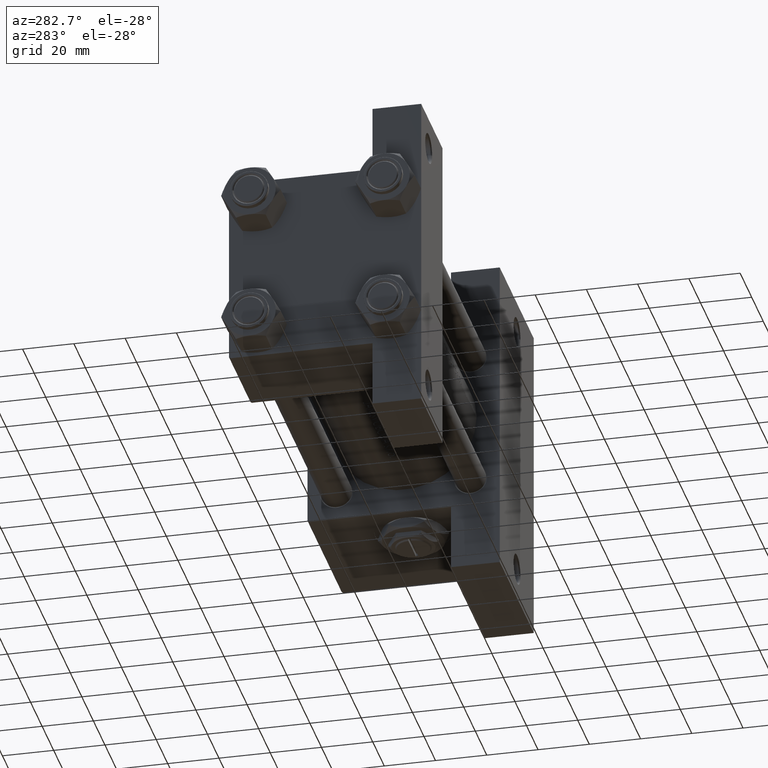
[diagram: clean part render]
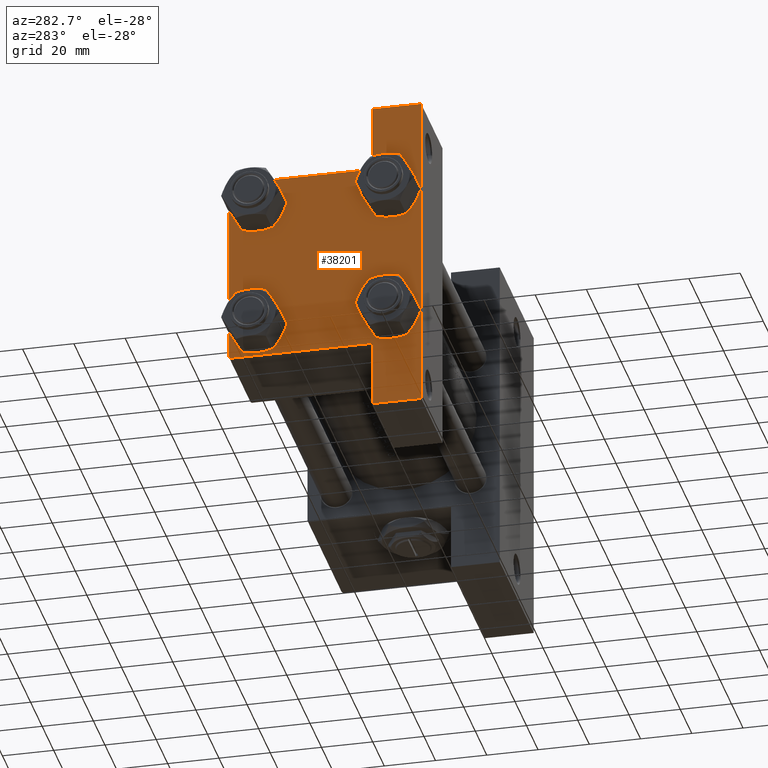
[diagram: same view with one face highlighted and labeled with its STEP entity id]
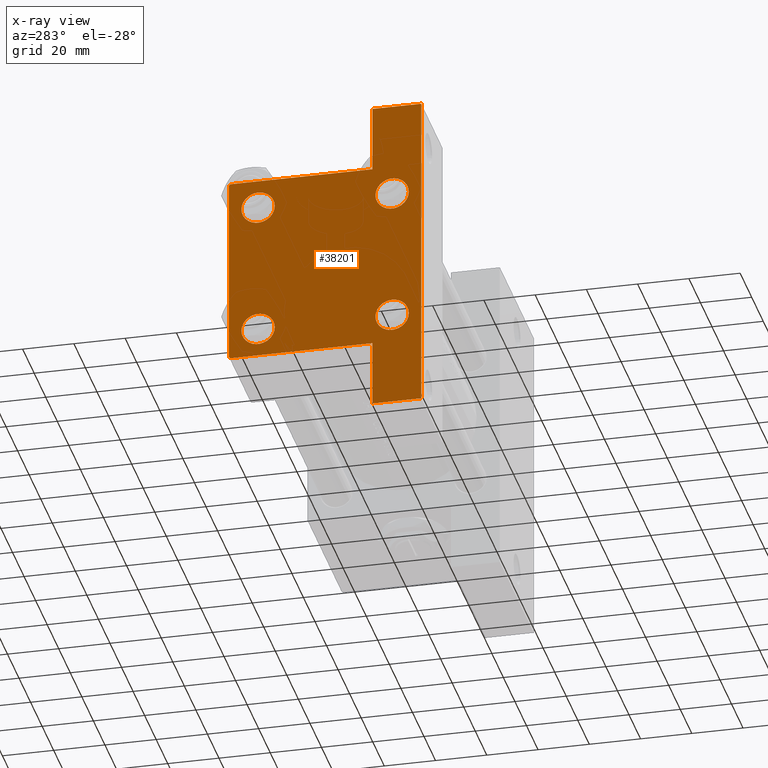
[diagram: x-ray of the same camera — body ghosted, the highlighted face saturated]
A machine part, auxiliary view. The second image highlights one B-rep face of the part: STEP entity #38201.
The next image is the same camera in x-ray: the body ghosted, the highlighted face saturated — about 0% of this face is hidden behind the body in this view.
In plain terms, the highlighted planar face has unit normal (-1, 0, -0).
Its self-contained STEP definition (entity closure, byte-faithful):
#8 = CARTESIAN_POINT ( 'NONE',  ( 0.000000000000000000, 37.49999999999999289, -18.49999999999999645 ) ) ;
#87 = CARTESIAN_POINT ( 'NONE',  ( 3.977209754999744250E-16, -63.49999999999998579, -18.50000000000000355 ) ) ;
#236 = VERTEX_POINT ( 'NONE', #23787 ) ;
#1041 = VECTOR ( 'NONE', #38420, 1000.000000000000000 ) ;
#1137 = DIRECTION ( 'NONE',  ( 0.000000000000000000, 0.000000000000000000, 1.000000000000000000 ) ) ;
#1184 = LINE ( 'NONE', #8662, #30453 ) ;
#1205 = CARTESIAN_POINT ( 'NONE',  ( 0.000000000000000000, 37.49999999999999289, 37.50000000000000000 ) ) ;
#1896 = VECTOR ( 'NONE', #3488, 1000.000000000000114 ) ;
#2680 = ORIENTED_EDGE ( 'NONE', *, *, #35478, .T. ) ;
#2807 = DIRECTION ( 'NONE',  ( 0.000000000000000000, -1.734723475976806848E-16, -1.000000000000000000 ) ) ;
#3044 = DIRECTION ( 'NONE',  ( 0.000000000000000000, -1.000000000000000000, -9.251858538542971581E-17 ) ) ;
#3206 = ORIENTED_EDGE ( 'NONE', *, *, #26325, .T. ) ;
#3488 = DIRECTION ( 'NONE',  ( 0.000000000000000000, 0.7071067811865474617, -0.7071067811865474617 ) ) ;
#3643 = CARTESIAN_POINT ( 'NONE',  ( 0.000000000000000000, 36.99999999999999289, 37.50000000000000000 ) ) ;
#3760 = VERTEX_POINT ( 'NONE', #17884 ) ;
#4013 = CARTESIAN_POINT ( 'NONE',  ( 0.000000000000000000, 26.14999999999999858, -26.15000000000000213 ) ) ;
#4054 = VERTEX_POINT ( 'NONE', #29701 ) ;
#4082 = CIRCLE ( 'NONE', #46206, 6.500000000000023093 ) ;
#4277 = CARTESIAN_POINT ( 'NONE',  ( 0.000000000000000000, 26.14999999999999858, -32.65000000000001990 ) ) ;
#4394 = CIRCLE ( 'NONE', #6791, 6.500000000000023093 ) ;
#4465 = ORIENTED_EDGE ( 'NONE', *, *, #29495, .F. ) ;
#4817 = DIRECTION ( 'NONE',  ( 0.000000000000000000, -1.000000000000000000, -9.251858538542972814E-17 ) ) ;
#4972 = CARTESIAN_POINT ( 'NONE',  ( 0.000000000000000000, 26.14999999999999858, 26.15000000000000213 ) ) ;
#5063 = VECTOR ( 'NONE', #39295, 1000.000000000000000 ) ;
#5613 = AXIS2_PLACEMENT_3D ( 'NONE', #21561, #40497, #13863 ) ;
#5681 = LINE ( 'NONE', #1205, #5063 ) ;
#6121 = VERTEX_POINT ( 'NONE', #27215 ) ;
#6341 = EDGE_CURVE ( 'NONE', #18123, #13469, #37391, .T. ) ;
#6677 = ORIENTED_EDGE ( 'NONE', *, *, #20675, .F. ) ;
#6791 = AXIS2_PLACEMENT_3D ( 'NONE', #30886, #42336, #31621 ) ;
#7147 = DIRECTION ( 'NONE',  ( 0.000000000000000000, 0.000000000000000000, 1.000000000000000000 ) ) ;
#7280 = CARTESIAN_POINT ( 'NONE',  ( -0.000000000000000000, -37.25000000000000000, 37.25000000000000000 ) ) ;
#7319 = AXIS2_PLACEMENT_3D ( 'NONE', #4013, #41362, #37126 ) ;
#7700 = CARTESIAN_POINT ( 'NONE',  ( 0.000000000000000000, 0.000000000000000000, 0.000000000000000000 ) ) ;
#7949 = FACE_OUTER_BOUND ( 'NONE', #42796, .T. ) ;
#8202 = EDGE_CURVE ( 'NONE', #31895, #14694, #9551, .T. ) ;
#8281 = DIRECTION ( 'NONE',  ( 1.000000000000000000, -0.000000000000000000, 0.000000000000000000 ) ) ;
#8528 = AXIS2_PLACEMENT_3D ( 'NONE', #7700, #26610, #46048 ) ;
#8555 = LINE ( 'NONE', #23736, #15410 ) ;
#8628 = VECTOR ( 'NONE', #26185, 1000.000000000000114 ) ;
#8662 = CARTESIAN_POINT ( 'NONE',  ( 3.977209754999747208E-16, -63.49999999999998579, 26.72167621838007889 ) ) ;
#8759 = EDGE_LOOP ( 'NONE', ( #16944, #27794 ) ) ;
#9551 = LINE ( 'NONE', #20736, #12682 ) ;
#10136 = VECTOR ( 'NONE', #2807, 1000.000000000000000 ) ;
#10784 = ORIENTED_EDGE ( 'NONE', *, *, #19062, .T. ) ;
#10796 = CARTESIAN_POINT ( 'NONE',  ( 0.000000000000000000, -37.50000000000000711, 36.99999999999999289 ) ) ;
#10902 = DIRECTION ( 'NONE',  ( 1.000000000000000000, -0.000000000000000000, 0.000000000000000000 ) ) ;
#12402 = EDGE_LOOP ( 'NONE', ( #21037, #39089 ) ) ;
#12682 = VECTOR ( 'NONE', #23744, 1000.000000000000000 ) ;
#12727 = CARTESIAN_POINT ( 'NONE',  ( 0.000000000000000000, 26.14999999999999858, 19.64999999999998437 ) ) ;
#13340 = VERTEX_POINT ( 'NONE', #46397 ) ;
#13469 = VERTEX_POINT ( 'NONE', #33162 ) ;
#13662 = VERTEX_POINT ( 'NONE', #40293 ) ;
#13863 = DIRECTION ( 'NONE',  ( 0.000000000000000000, 0.000000000000000000, 1.000000000000000000 ) ) ;
#14000 = LINE ( 'NONE', #44136, #38560 ) ;
#14694 = VERTEX_POINT ( 'NONE', #8 ) ;
#14723 = AXIS2_PLACEMENT_3D ( 'NONE', #18421, #36331, #1137 ) ;
#15410 = VECTOR ( 'NONE', #4817, 1000.000000000000000 ) ;
#15993 = DIRECTION ( 'NONE',  ( 0.000000000000000000, 0.000000000000000000, 1.000000000000000000 ) ) ;
#16333 = CIRCLE ( 'NONE', #46569, 6.500000000000015987 ) ;
#16913 = DIRECTION ( 'NONE',  ( 1.000000000000000000, -0.000000000000000000, 0.000000000000000000 ) ) ;
#16944 = ORIENTED_EDGE ( 'NONE', *, *, #48644, .T. ) ;
#17250 = CARTESIAN_POINT ( 'NONE',  ( 0.000000000000000000, 37.24999999999999289, 37.24999999999999289 ) ) ;
#17274 = VERTEX_POINT ( 'NONE', #36118 ) ;
#17884 = CARTESIAN_POINT ( 'NONE',  ( 0.000000000000000000, 26.14999999999999858, 32.65000000000002700 ) ) ;
#18123 = VERTEX_POINT ( 'NONE', #10796 ) ;
#18421 = CARTESIAN_POINT ( 'NONE',  ( 0.000000000000000000, -26.14999999999999147, 26.15000000000000924 ) ) ;
#18616 = CARTESIAN_POINT ( 'NONE',  ( 0.000000000000000000, -26.14999999999999147, 26.15000000000000924 ) ) ;
#19009 = CARTESIAN_POINT ( 'NONE',  ( 0.000000000000000000, -26.14999999999999147, -32.65000000000002700 ) ) ;
#19062 = EDGE_CURVE ( 'NONE', #35632, #17274, #46309, .T. ) ;
#19152 = FACE_BOUND ( 'NONE', #12402, .T. ) ;
#19373 = DIRECTION ( 'NONE',  ( 0.000000000000000000, -1.734723475976806848E-16, -1.000000000000000000 ) ) ;
#19536 = VERTEX_POINT ( 'NONE', #42573 ) ;
#19717 = CARTESIAN_POINT ( 'NONE',  ( 0.000000000000000000, 26.14999999999999858, -26.15000000000000213 ) ) ;
#19834 = LINE ( 'NONE', #28536, #21092 ) ;
#20675 = EDGE_CURVE ( 'NONE', #40959, #4054, #1184, .T. ) ;
#20736 = CARTESIAN_POINT ( 'NONE',  ( 1.595073532467135757E-14, 63.50000000000001421, -18.50000000000000355 ) ) ;
#20936 = EDGE_CURVE ( 'NONE', #28607, #6121, #36012, .T. ) ;
#21037 = ORIENTED_EDGE ( 'NONE', *, *, #47161, .T. ) ;
#21092 = VECTOR ( 'NONE', #46727, 1000.000000000000000 ) ;
#21330 = EDGE_CURVE ( 'NONE', #13662, #40959, #37926, .T. ) ;
#21561 = CARTESIAN_POINT ( 'NONE',  ( 0.000000000000000000, -26.14999999999999147, -26.15000000000000924 ) ) ;
#21980 = EDGE_LOOP ( 'NONE', ( #45405, #10784 ) ) ;
#22151 = ORIENTED_EDGE ( 'NONE', *, *, #23810, .T. ) ;
#22640 = PLANE ( 'NONE',  #8528 ) ;
#23736 = CARTESIAN_POINT ( 'NONE',  ( 0.000000000000000000, 37.49999999999999289, -37.50000000000000000 ) ) ;
#23744 = DIRECTION ( 'NONE',  ( -2.877097866686192789E-16, -1.000000000000000000, 0.000000000000000000 ) ) ;
#23787 = CARTESIAN_POINT ( 'NONE',  ( 1.595073532467135441E-14, 63.50000000000000000, -37.50000000000002132 ) ) ;
#23810 = EDGE_CURVE ( 'NONE', #3760, #27089, #42380, .T. ) ;
#24446 = ORIENTED_EDGE ( 'NONE', *, *, #26070, .T. ) ;
#25832 = DIRECTION ( 'NONE',  ( 0.000000000000000000, 0.000000000000000000, 1.000000000000000000 ) ) ;
#26070 = EDGE_CURVE ( 'NONE', #236, #4054, #8555, .T. ) ;
#26148 = EDGE_CURVE ( 'NONE', #29074, #13340, #47634, .T. ) ;
#26185 = DIRECTION ( 'NONE',  ( -0.000000000000000000, 0.7071067811865474617, 0.7071067811865474617 ) ) ;
#26325 = EDGE_CURVE ( 'NONE', #13340, #14694, #5681, .T. ) ;
#26610 = DIRECTION ( 'NONE',  ( -1.000000000000000000, 0.000000000000000000, -0.000000000000000000 ) ) ;
#27089 = VERTEX_POINT ( 'NONE', #12727 ) ;
#27185 = ORIENTED_EDGE ( 'NONE', *, *, #26148, .T. ) ;
#27215 = CARTESIAN_POINT ( 'NONE',  ( 0.000000000000000000, -26.14999999999999147, -19.64999999999999503 ) ) ;
#27410 = EDGE_CURVE ( 'NONE', #17274, #35632, #16333, .T. ) ;
#27735 = EDGE_CURVE ( 'NONE', #27089, #3760, #4394, .T. ) ;
#27794 = ORIENTED_EDGE ( 'NONE', *, *, #29894, .T. ) ;
#28536 = CARTESIAN_POINT ( 'NONE',  ( 0.000000000000000000, -37.50000000000000711, 37.49999999999999289 ) ) ;
#28607 = VERTEX_POINT ( 'NONE', #19009 ) ;
#29074 = VERTEX_POINT ( 'NONE', #3643 ) ;
#29495 = EDGE_CURVE ( 'NONE', #29074, #13469, #14000, .T. ) ;
#29701 = CARTESIAN_POINT ( 'NONE',  ( 3.977209754999747208E-16, -63.50000000000000000, -37.49999999999999289 ) ) ;
#29894 = EDGE_CURVE ( 'NONE', #19536, #37103, #36171, .T. ) ;
#30453 = VECTOR ( 'NONE', #19373, 1000.000000000000000 ) ;
#30886 = CARTESIAN_POINT ( 'NONE',  ( 0.000000000000000000, 26.14999999999999858, 26.15000000000000213 ) ) ;
#31043 = EDGE_CURVE ( 'NONE', #18123, #13662, #19834, .T. ) ;
#31621 = DIRECTION ( 'NONE',  ( 0.000000000000000000, 0.000000000000000000, 1.000000000000000000 ) ) ;
#31895 = VERTEX_POINT ( 'NONE', #42333 ) ;
#32124 = CARTESIAN_POINT ( 'NONE',  ( 0.000000000000000000, -26.14999999999999147, 32.65000000000003411 ) ) ;
#32226 = EDGE_LOOP ( 'NONE', ( #22151, #47889 ) ) ;
#33162 = CARTESIAN_POINT ( 'NONE',  ( 0.000000000000000000, -37.00000000000000711, 37.49999999999999289 ) ) ;
#33668 = CARTESIAN_POINT ( 'NONE',  ( 1.595073532467135441E-14, 63.50000000000001421, 26.72167621838005047 ) ) ;
#34331 = FACE_BOUND ( 'NONE', #21980, .T. ) ;
#35162 = ORIENTED_EDGE ( 'NONE', *, *, #8202, .F. ) ;
#35193 = AXIS2_PLACEMENT_3D ( 'NONE', #4972, #16913, #47293 ) ;
#35478 = EDGE_CURVE ( 'NONE', #31895, #236, #36663, .T. ) ;
#35632 = VERTEX_POINT ( 'NONE', #4277 ) ;
#36012 = CIRCLE ( 'NONE', #42383, 6.500000000000015987 ) ;
#36118 = CARTESIAN_POINT ( 'NONE',  ( 0.000000000000000000, 26.14999999999999858, -19.64999999999998792 ) ) ;
#36171 = CIRCLE ( 'NONE', #14723, 6.500000000000023093 ) ;
#36331 = DIRECTION ( 'NONE',  ( 1.000000000000000000, -0.000000000000000000, 0.000000000000000000 ) ) ;
#36663 = LINE ( 'NONE', #33668, #10136 ) ;
#37075 = ORIENTED_EDGE ( 'NONE', *, *, #31043, .F. ) ;
#37103 = VERTEX_POINT ( 'NONE', #32124 ) ;
#37126 = DIRECTION ( 'NONE',  ( 0.000000000000000000, 0.000000000000000000, 1.000000000000000000 ) ) ;
#37391 = LINE ( 'NONE', #7280, #8628 ) ;
#37926 = LINE ( 'NONE', #87, #1041 ) ;
#38201 = ADVANCED_FACE ( 'NONE', ( #45557, #19152, #34331, #49040, #7949 ), #22640, .T. ) ;
#38258 = ORIENTED_EDGE ( 'NONE', *, *, #21330, .F. ) ;
#38420 = DIRECTION ( 'NONE',  ( 4.278042683914906889E-17, -1.000000000000000000, 0.000000000000000000 ) ) ;
#38560 = VECTOR ( 'NONE', #3044, 1000.000000000000000 ) ;
#39089 = ORIENTED_EDGE ( 'NONE', *, *, #20936, .T. ) ;
#39295 = DIRECTION ( 'NONE',  ( 0.000000000000000000, 0.000000000000000000, -1.000000000000000000 ) ) ;
#40293 = CARTESIAN_POINT ( 'NONE',  ( -7.145701223179004046E-16, -37.50000000000000711, -18.50000000000000355 ) ) ;
#40497 = DIRECTION ( 'NONE',  ( 1.000000000000000000, -0.000000000000000000, 0.000000000000000000 ) ) ;
#40959 = VERTEX_POINT ( 'NONE', #45968 ) ;
#41240 = DIRECTION ( 'NONE',  ( 1.000000000000000000, -0.000000000000000000, 0.000000000000000000 ) ) ;
#41362 = DIRECTION ( 'NONE',  ( 1.000000000000000000, -0.000000000000000000, 0.000000000000000000 ) ) ;
#41730 = CARTESIAN_POINT ( 'NONE',  ( 0.000000000000000000, -26.14999999999999147, -26.15000000000000924 ) ) ;
#42333 = CARTESIAN_POINT ( 'NONE',  ( 1.595073532467135441E-14, 63.50000000000000000, -18.50000000000000355 ) ) ;
#42336 = DIRECTION ( 'NONE',  ( 1.000000000000000000, -0.000000000000000000, 0.000000000000000000 ) ) ;
#42380 = CIRCLE ( 'NONE', #35193, 6.500000000000023093 ) ;
#42383 = AXIS2_PLACEMENT_3D ( 'NONE', #41730, #41240, #7147 ) ;
#42573 = CARTESIAN_POINT ( 'NONE',  ( 0.000000000000000000, -26.14999999999999147, 19.64999999999999147 ) ) ;
#42796 = EDGE_LOOP ( 'NONE', ( #37075, #43683, #4465, #27185, #3206, #35162, #2680, #24446, #6677, #38258 ) ) ;
#43683 = ORIENTED_EDGE ( 'NONE', *, *, #6341, .T. ) ;
#44136 = CARTESIAN_POINT ( 'NONE',  ( 0.000000000000000000, 37.49999999999999289, 37.50000000000000000 ) ) ;
#45405 = ORIENTED_EDGE ( 'NONE', *, *, #27410, .T. ) ;
#45557 = FACE_BOUND ( 'NONE', #8759, .T. ) ;
#45968 = CARTESIAN_POINT ( 'NONE',  ( 3.977209754999747208E-16, -63.50000000000000000, -18.50000000000000355 ) ) ;
#46048 = DIRECTION ( 'NONE',  ( -0.000000000000000000, 0.000000000000000000, 1.000000000000000000 ) ) ;
#46206 = AXIS2_PLACEMENT_3D ( 'NONE', #18616, #10902, #25832 ) ;
#46309 = CIRCLE ( 'NONE', #7319, 6.500000000000015987 ) ;
#46397 = CARTESIAN_POINT ( 'NONE',  ( 0.000000000000000000, 37.49999999999999289, 37.00000000000000000 ) ) ;
#46569 = AXIS2_PLACEMENT_3D ( 'NONE', #19717, #8281, #15993 ) ;
#46727 = DIRECTION ( 'NONE',  ( 0.000000000000000000, 9.251858538542971581E-17, -1.000000000000000000 ) ) ;
#46986 = CIRCLE ( 'NONE', #5613, 6.500000000000015987 ) ;
#47161 = EDGE_CURVE ( 'NONE', #6121, #28607, #46986, .T. ) ;
#47293 = DIRECTION ( 'NONE',  ( 0.000000000000000000, 0.000000000000000000, 1.000000000000000000 ) ) ;
#47634 = LINE ( 'NONE', #17250, #1896 ) ;
#47889 = ORIENTED_EDGE ( 'NONE', *, *, #27735, .T. ) ;
#48644 = EDGE_CURVE ( 'NONE', #37103, #19536, #4082, .T. ) ;
#49040 = FACE_BOUND ( 'NONE', #32226, .T. ) ;